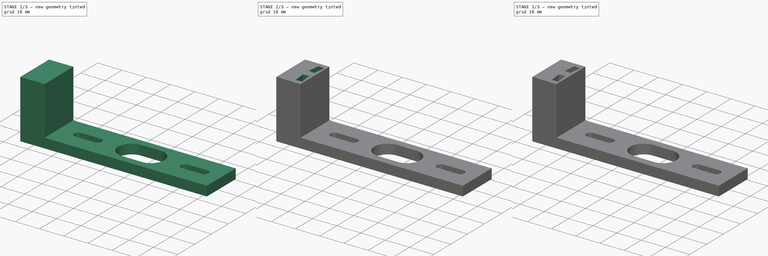
[diagram: build sequence overview — one tinted view per stage of 3, left to right]
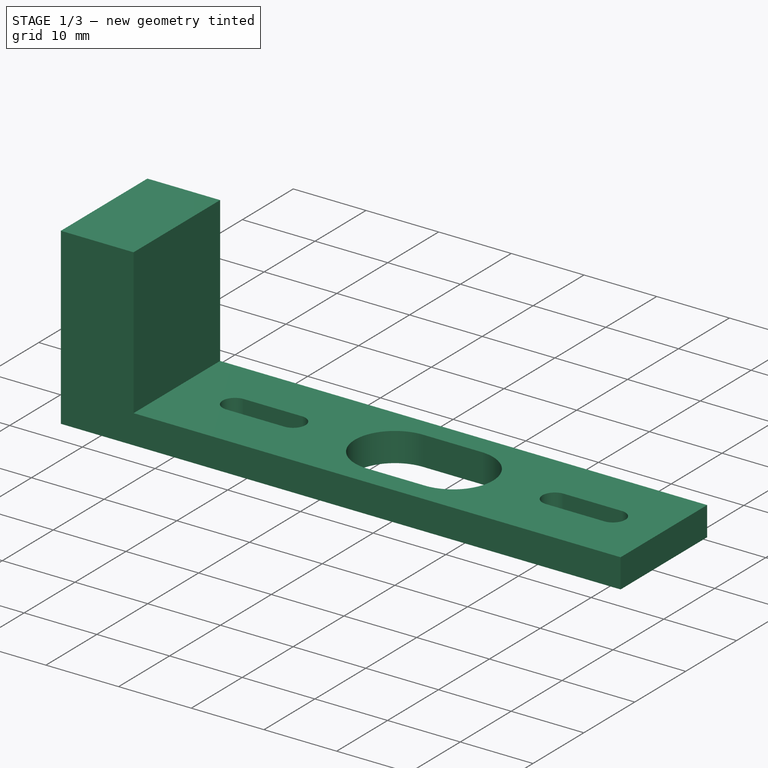
[diagram: stage 1 of 3 — iso view after this stage's code; geometry added in this stage tinted green]
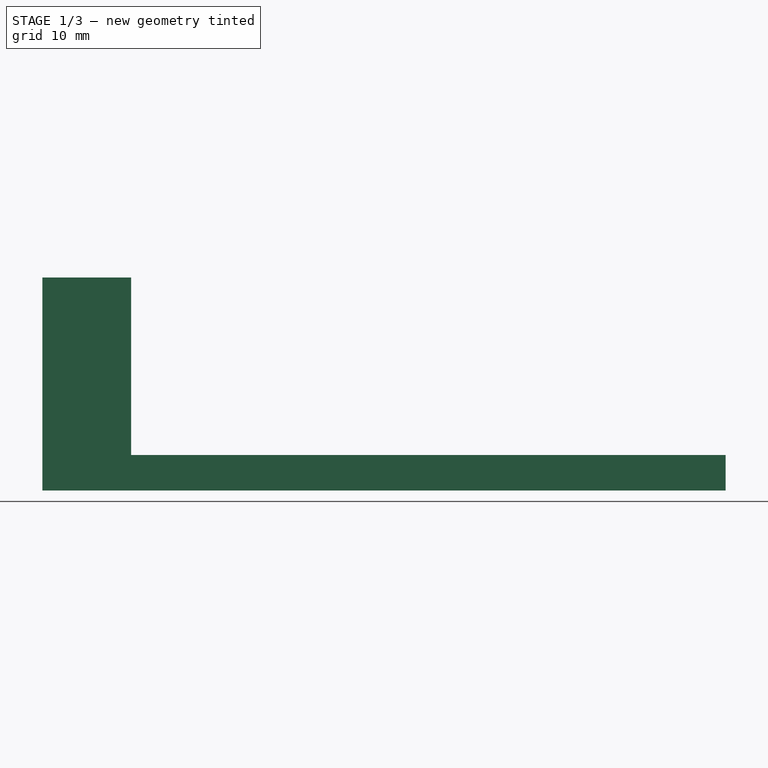
[diagram: stage 1 of 3 — front view after this stage's code; geometry added in this stage tinted green]
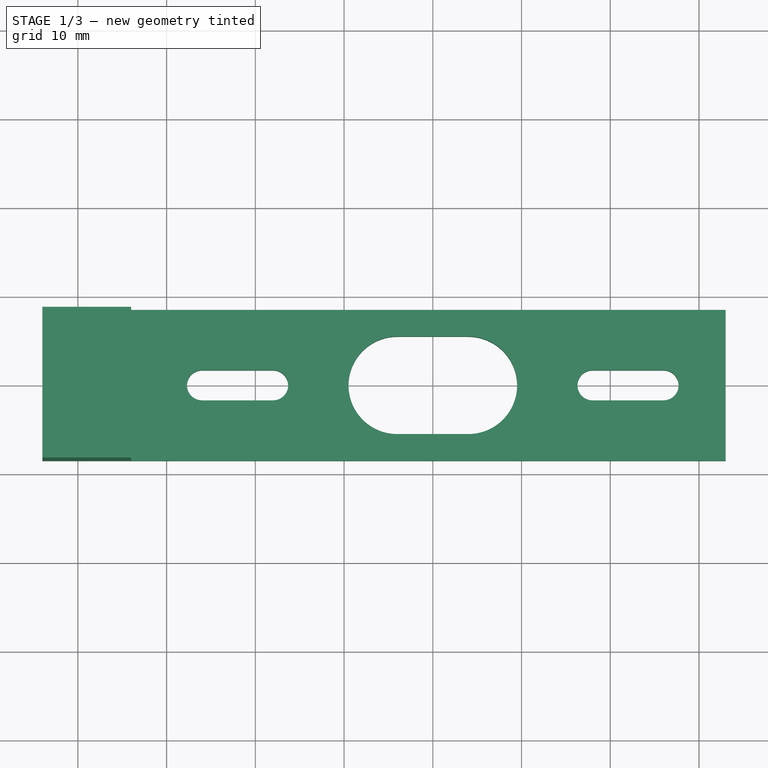
[diagram: stage 1 of 3 — top view after this stage's code; geometry added in this stage tinted green]
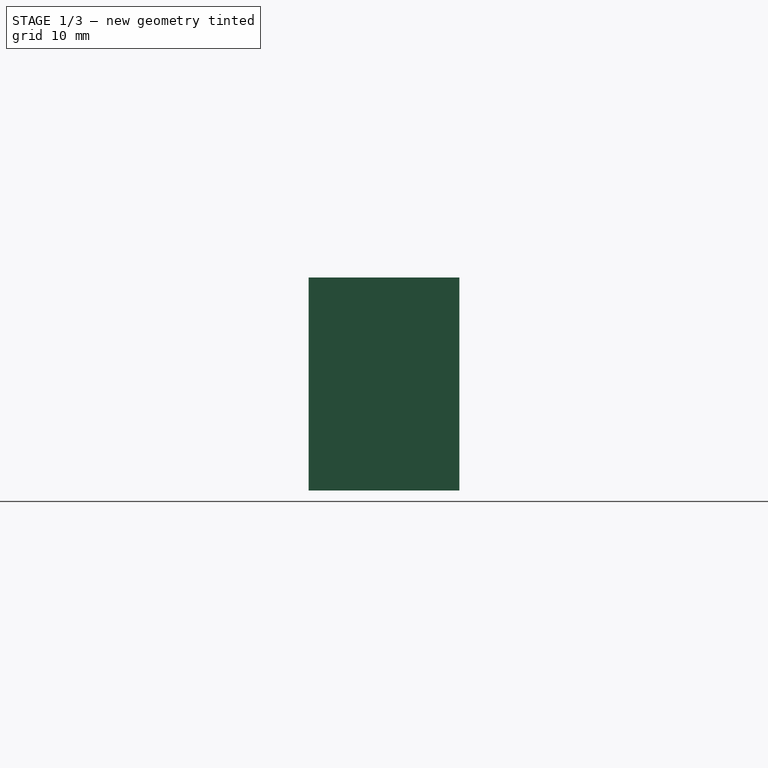
[diagram: stage 1 of 3 — right view after this stage's code; geometry added in this stage tinted green]
FCSTD DOCUMENT  (FreeCAD 0.16R6705 (Git))
Label: MotorSensorTest
License: All rights reserved
LicenseURL: http://en.wikipedia.org/wiki/All_rights_reserved
objects: Sketcher::SketchObject×3, PartDesign::Pocket×2, PartDesign::Chamfer×2, PartDesign::Pad×1
note: 11 computed .brp shape members not serialized (recipe doc carries the construction recipe); baked Part::Feature solids carry a one-line shape summary decoded from their .brp

FEATURE [Sketcher::SketchObject] Sketch
  Placement = pos=(0,0,0) rot=(1,0,0;1.5708rad)
  sketch-geometry (6):
    g0: LineSegment StartX=-44 StartY=-4 StartZ=0 EndX=-44 EndY=20 EndZ=0
    g1: LineSegment StartX=-44 StartY=20 StartZ=0 EndX=-34 EndY=20 EndZ=0
    g2: LineSegment StartX=-34 StartY=20 StartZ=0 EndX=-34 EndY=0 EndZ=0
    g3: LineSegment StartX=-34 StartY=0 StartZ=0 EndX=33 EndY=0 EndZ=0
    g4: LineSegment StartX=33 StartY=0 StartZ=0 EndX=33 EndY=-4 EndZ=0
    g5: LineSegment StartX=33 StartY=-4 StartZ=0 EndX=-44 EndY=-4 EndZ=0
  constraints (18):
    c: Vertical(g0)
    c: Coincident(g0,g1)
    c: Horizontal(g1)
    c: Coincident(g1,g2)
    c: Vertical(g2)
    c: Coincident(g2,g3)
    c: Horizontal(g3)
    c: Coincident(g3,g4)
    c: Vertical(g4)
    c: Coincident(g4,g5)
    c: Horizontal(g5)
    c: Coincident(g0,g5)
    c: DistanceX(g2,g-1) = 34
    c: PointOnObject(g3,g-1)
    c: DistanceX(g-1,g3) = 33
    c: DistanceY(g4,g3) = 4
    c: DistanceX(g0,g2) = 10
    c: DistanceY(g2,g1) = 20
FEATURE [PartDesign::Pad] Pad
  Length = 17
  Length2 = 100
  Midplane = true
  Placement = pos=(0,0,0) rot=(1,0,0;1.5708rad)
  Sketch = -> Sketch
  Type = 0
FEATURE [Sketcher::SketchObject] Sketch001
  Placement = pos=(0,0,-4) rot=(1,0,0;3.14159rad)
  Support = -> Pad [Face6]
  sketch-geometry (15):
    g0: Circle [constr] CenterX=-22 CenterY=0 CenterZ=0 NormalX=0 NormalY=0 NormalZ=1 Radius=1.7
    g1: Circle [constr] CenterX=22 CenterY=0 CenterZ=0 NormalX=0 NormalY=0 NormalZ=1 Radius=1.7
    g2: Circle [constr] CenterX=0 CenterY=0 CenterZ=0 NormalX=0 NormalY=0 NormalZ=1 Radius=5.5
    g3: ArcOfCircle CenterX=-26 CenterY=0 CenterZ=0 NormalX=0 NormalY=0 NormalZ=1 Radius=1.7 StartAngle=1.5708 EndAngle=4.71239
    g4: ArcOfCircle CenterX=-18 CenterY=0 CenterZ=0 NormalX=0 NormalY=0 NormalZ=1 Radius=1.7 StartAngle=4.71239 EndAngle=7.85398
    g5: LineSegment StartX=-26 StartY=-1.7 StartZ=0 EndX=-18 EndY=-1.7 EndZ=0
    g6: LineSegment StartX=-26 StartY=1.7 StartZ=0 EndX=-18 EndY=1.7 EndZ=0
    g7: ArcOfCircle CenterX=-4 CenterY=0 CenterZ=0 NormalX=0 NormalY=0 NormalZ=1 Radius=5.5 StartAngle=1.5708 EndAngle=4.71239
    g8: ArcOfCircle CenterX=4 CenterY=0 CenterZ=0 NormalX=0 NormalY=0 NormalZ=1 Radius=5.5 StartAngle=4.71239 EndAngle=7.85398
    g9: LineSegment StartX=-4 StartY=-5.5 StartZ=0 EndX=4 EndY=-5.5 EndZ=0
    g10: LineSegment StartX=-4 StartY=5.5 StartZ=0 EndX=4 EndY=5.5 EndZ=0
    g11: ArcOfCircle CenterX=18 CenterY=0 CenterZ=0 NormalX=0 NormalY=0 NormalZ=1 Radius=1.7 StartAngle=1.5708 EndAngle=4.71239
    g12: ArcOfCircle CenterX=26 CenterY=0 CenterZ=0 NormalX=0 NormalY=0 NormalZ=1 Radius=1.7 StartAngle=4.71239 EndAngle=7.85398
    g13: LineSegment StartX=18 StartY=-1.7 StartZ=0 EndX=26 EndY=-1.7 EndZ=0
    g14: LineSegment StartX=18 StartY=1.7 StartZ=0 EndX=26 EndY=1.7 EndZ=0
  constraints (38):
    c: PointOnObject(g0,g-1)
    c: PointOnObject(g1,g-1)
    c: Symmetric(g1,g0,g-1)
    c: Radius(g0) = 1.7
    c: Equal(g0,g1)
    c: DistanceX(g-1,g1) = 22
    c: Coincident(g2,g-1)
    c: Radius(g2) = 5.5
    c: Tangent(g3,g6) = 1.5708
    c: Tangent(g3,g5) = -1.5708
    c: Tangent(g5,g4) = -1.5708
    c: Tangent(g6,g4) = 1.5708
    c: Horizontal(g5)
    c: Equal(g3,g4)
    c: Tangent(g7,g10) = 1.5708
    c: Tangent(g7,g9) = -1.5708
    c: Tangent(g9,g8) = -1.5708
    c: Tangent(g10,g8) = 1.5708
    c: Horizontal(g9)
    c: Equal(g7,g8)
    c: PointOnObject(g7,g-1)
    c: Tangent(g11,g14) = 1.5708
    c: Tangent(g11,g13) = -1.5708
    c: Tangent(g13,g12) = -1.5708
    c: Tangent(g14,g12) = 1.5708
    c: Horizontal(g13)
    c: Equal(g11,g12)
    c: PointOnObject(g3,g-1)
    c: PointOnObject(g11,g-1)
    c: DistanceX(g11,g12) = 8
    c: DistanceX(g7,g8) = 8
    c: DistanceX(g3,g4) = 8
    c: Radius(g8) = 5.5
    c: Symmetric(g8,g7,g-2)
    c: DistanceX(g0,g4) = 4
    c: DistanceX(g11,g1) = 4
    c: Radius(g12) = 1.7
    c: Radius(g4) = 1.7
FEATURE [PartDesign::Pocket] Pocket
  Length = 5
  Placement = pos=(0,0,0) rot=(1,0,0;1.5708rad)
  Sketch = -> Sketch001
  Type = 1
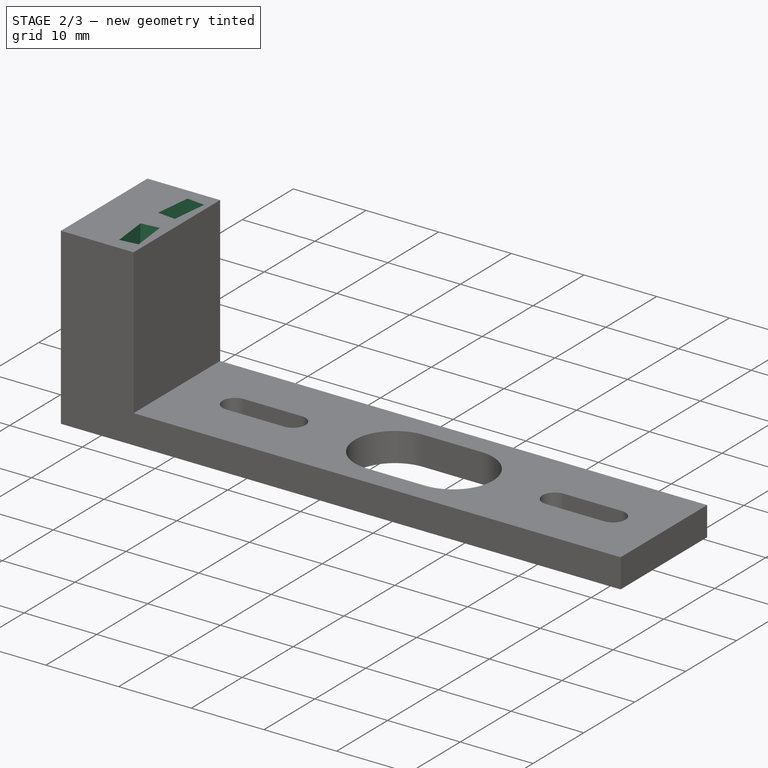
[diagram: stage 2 of 3 — iso view after this stage's code; geometry added in this stage tinted green]
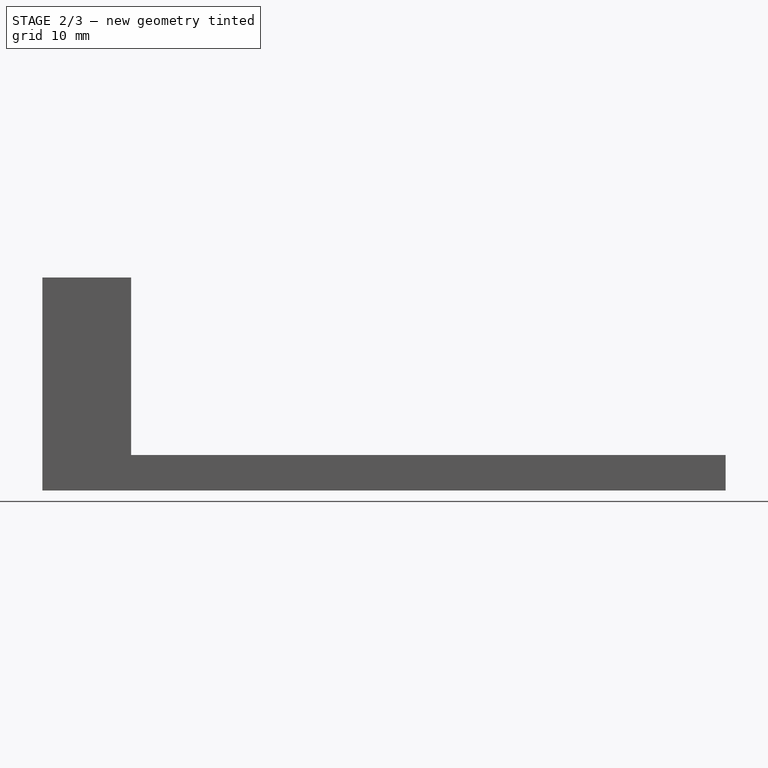
[diagram: stage 2 of 3 — front view after this stage's code; geometry added in this stage tinted green]
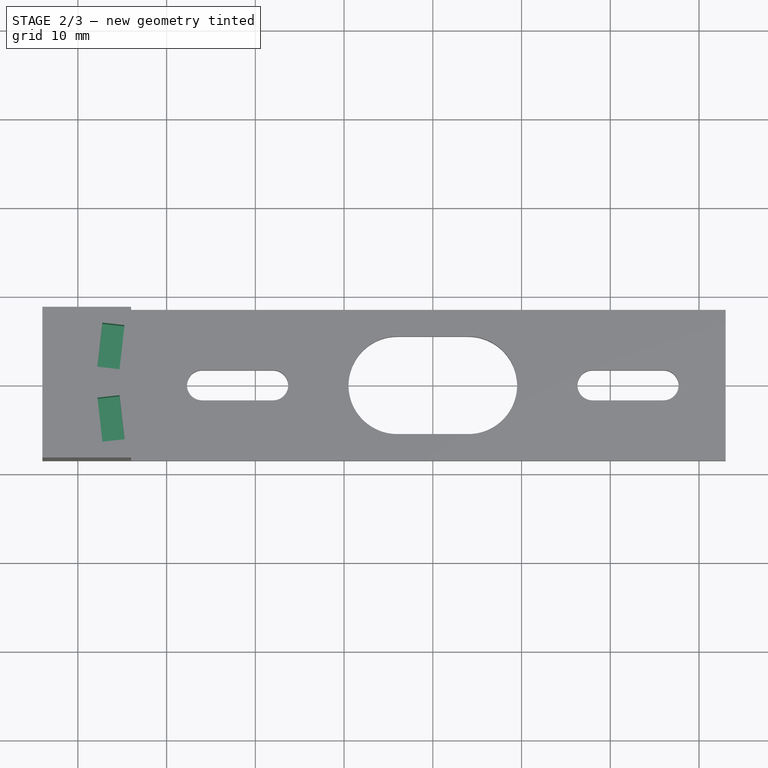
[diagram: stage 2 of 3 — top view after this stage's code; geometry added in this stage tinted green]
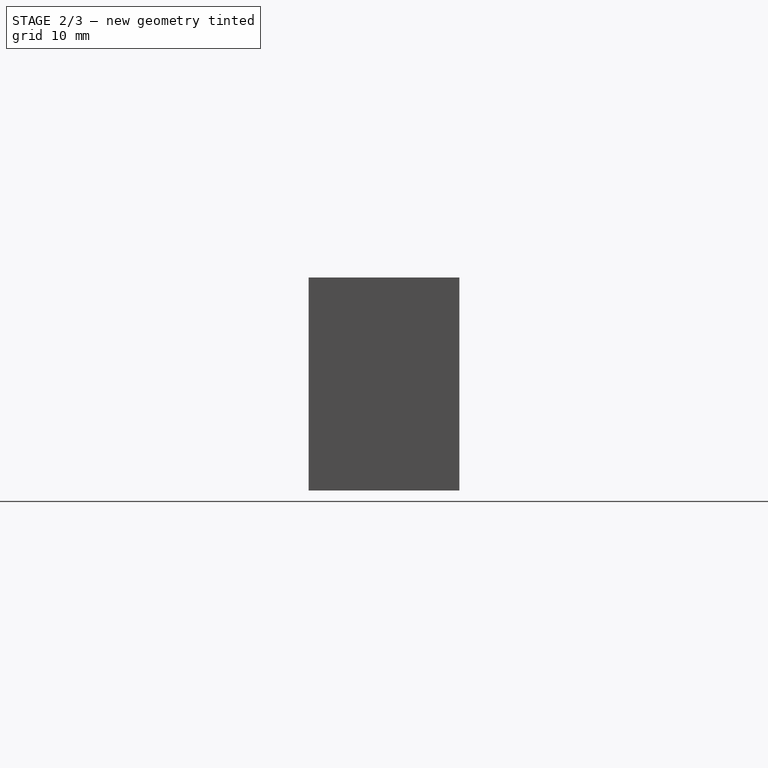
[diagram: stage 2 of 3 — right view after this stage's code; geometry added in this stage tinted green]
FEATURE [Sketcher::SketchObject] Sketch006  label="SensorSlotSpacing."
  Placement = pos=(0,0,20) rot=(0,0,1;3.14159rad)
  Support = -> Pocket [Face3]
  sketch-geometry (14):
    g0: Circle [constr] CenterX=0 CenterY=0 CenterZ=0 NormalX=0 NormalY=0 NormalZ=1 Radius=36.5
    g1: LineSegment [constr] StartX=0 StartY=0 StartZ=0 EndX=36.2704 EndY=4.08761 EndZ=0
    g2: LineSegment [constr] StartX=0 StartY=0 StartZ=0 EndX=36.2704 EndY=-4.08761 EndZ=0
    g3: Circle [constr] CenterX=68.2704 CenterY=0 CenterZ=0 NormalX=0 NormalY=0 NormalZ=1 Radius=32.26
    g4: Circle [constr] CenterX=0 CenterY=0 CenterZ=0 NormalX=0 NormalY=0 NormalZ=1 Radius=31.5
    g5: LineSegment StartX=34.7483 StartY=6.43189 StartZ=0 EndX=37.2326 EndY=6.71187 EndZ=0
    g6: LineSegment StartX=37.2326 StartY=6.71187 StartZ=0 EndX=37.7925 EndY=1.74332 EndZ=0
    g7: LineSegment StartX=37.7925 StartY=1.74332 StartZ=0 EndX=35.3082 EndY=1.46335 EndZ=0
    g8: LineSegment StartX=35.3082 StartY=1.46335 StartZ=0 EndX=34.7483 EndY=6.43189 EndZ=0
    g9: LineSegment StartX=35.3082 StartY=-1.46335 StartZ=0 EndX=37.7925 EndY=-1.74332 EndZ=0
    g10: LineSegment StartX=37.7925 StartY=-1.74332 StartZ=0 EndX=37.2326 EndY=-6.71187 EndZ=0
    g11: LineSegment StartX=37.2326 StartY=-6.71187 StartZ=0 EndX=34.7483 EndY=-6.43189 EndZ=0
    g12: LineSegment StartX=34.7483 StartY=-6.43189 StartZ=0 EndX=35.3082 EndY=-1.46335 EndZ=0
    g13: LineSegment [constr] StartX=36.5504 StartY=-1.60333 StartZ=0 EndX=35.9904 EndY=-6.57188 EndZ=0
  constraints (38):
    c: Coincident(g0,g-1)
    c: Radius(g0) = 36.5
    c: Coincident(g1,g-1)
    c: Coincident(g2,g-1)
    c: PointOnObject(g1,g0)
    c: PointOnObject(g2,g0)
    c: Angle(g2,g1) = 0.224449
    c: PointOnObject(g3,g-1)
    c: PointOnObject(g1,g3)
    c: PointOnObject(g2,g3)
    c: DistanceX(g2,g3) = 32
    c: Coincident(g4,g-1)
    c: Radius(g4) = 31.5
    c: Coincident(g5,g6)
    c: Coincident(g6,g7)
    c: Coincident(g7,g8)
    c: Coincident(g8,g5)
    c: Coincident(g9,g10)
    c: Coincident(g10,g11)
    c: Coincident(g11,g12)
    c: Coincident(g12,g9)
    c: PointOnObject(g13,g11)
    c: PointOnObject(g13,g9)
    c: Equal(g10,g12)
    c: Equal(g11,g9)
    c: Perpendicular(g9,g10)
    c: Symmetric(g11,g10,g13)
    c: Symmetric(g9,g9,g13)
    c: Symmetric(g13,g13,g2)
    c: Perpendicular(g2,g13)
    c: Distance(g9,g10) = 5
    c: Distance(g9,g9) = 2.5
    c: Symmetric(g9,g7,g-1)
    c: Symmetric(g5,g10,g-1)
    c: Equal(g7,g5)
    c: Equal(g8,g6)
    c: Perpendicular(g7,g6)
    c: Equal(g7,g11)
FEATURE [PartDesign::Pocket] Pocket001
  Length = 8.5
  Placement = pos=(0,0,0) rot=(1,0,0;1.5708rad)
  Sketch = -> Sketch006
  Type = 0
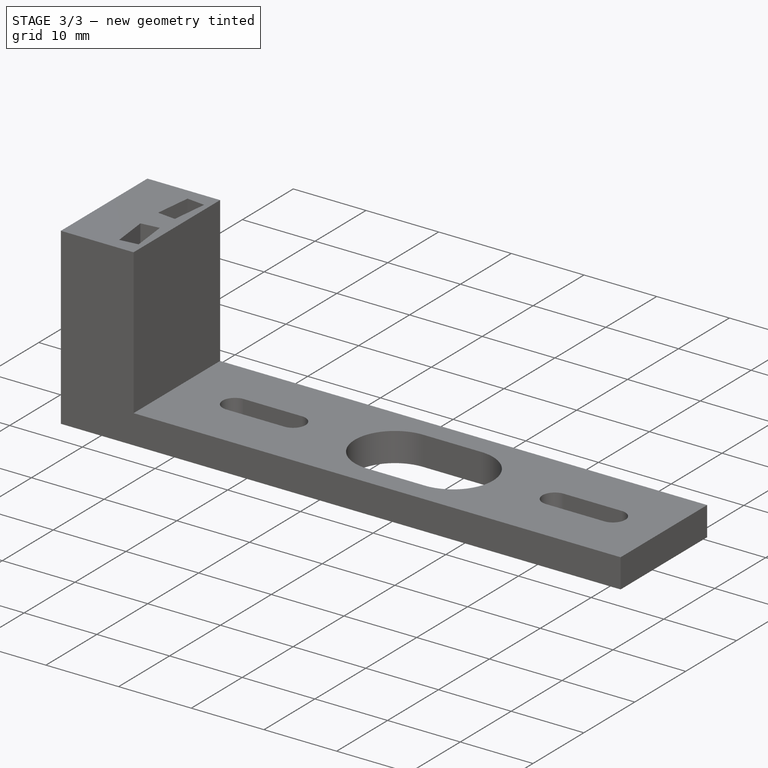
[diagram: stage 3 of 3 — iso view after this stage's code; geometry added in this stage tinted green]
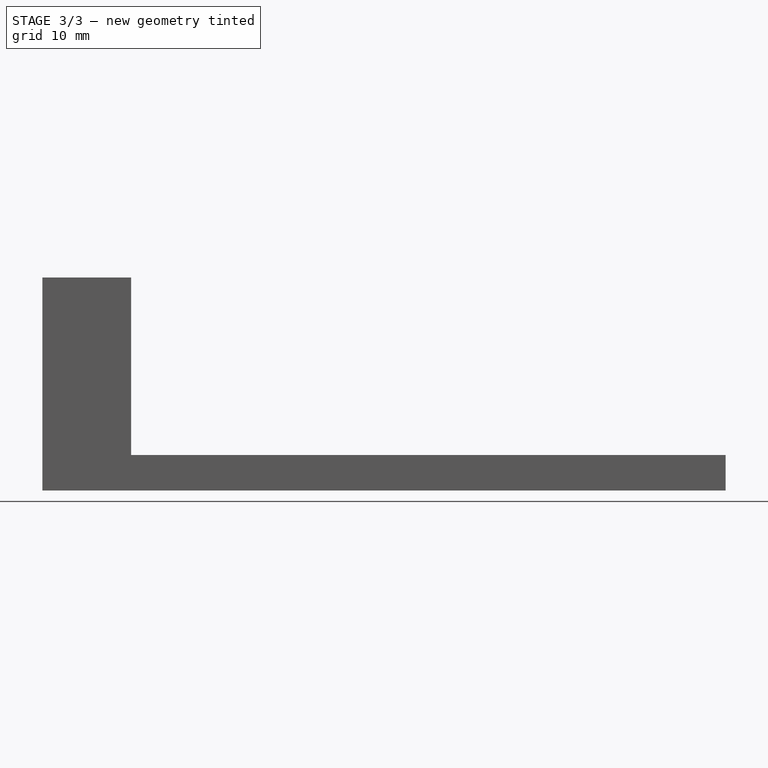
[diagram: stage 3 of 3 — front view after this stage's code; geometry added in this stage tinted green]
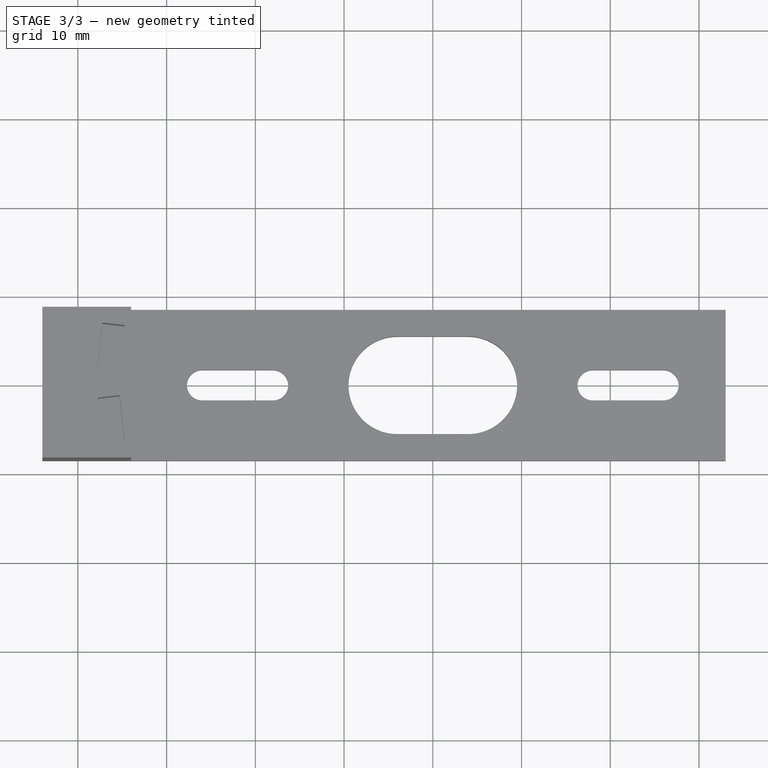
[diagram: stage 3 of 3 — top view after this stage's code; geometry added in this stage tinted green]
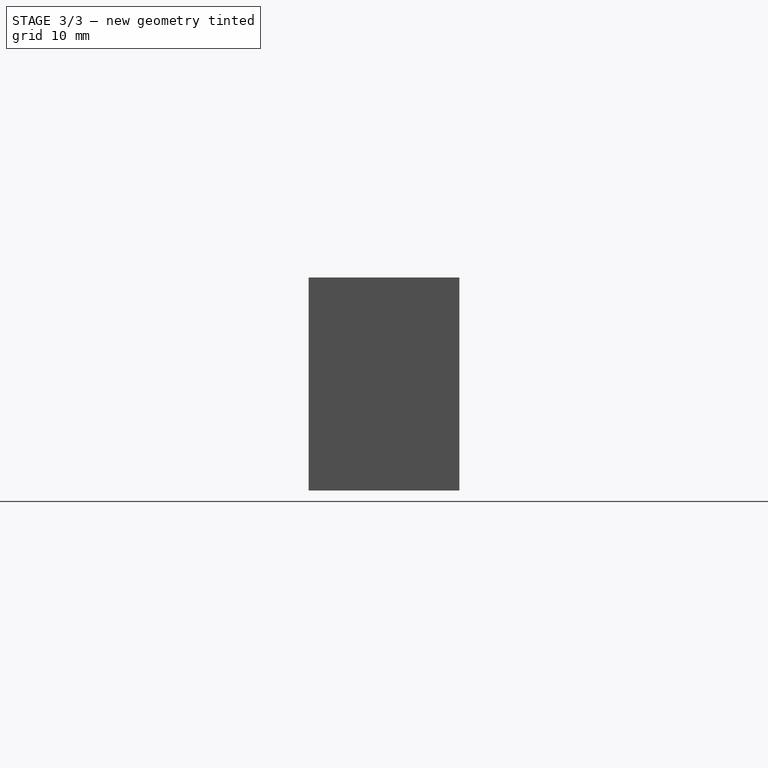
[diagram: stage 3 of 3 — right view after this stage's code; geometry added in this stage tinted green]
FEATURE [PartDesign::Chamfer] Chamfer
  Base = -> Pocket001 [Edge12]
  Placement = pos=(0,0,0) rot=(1,0,0;1.5708rad)
  Size = 1.5
FEATURE [PartDesign::Chamfer] Chamfer001
  Base = -> Chamfer [Edge14]
  Placement = pos=(0,0,0) rot=(1,0,0;1.5708rad)
  Size = 1.5
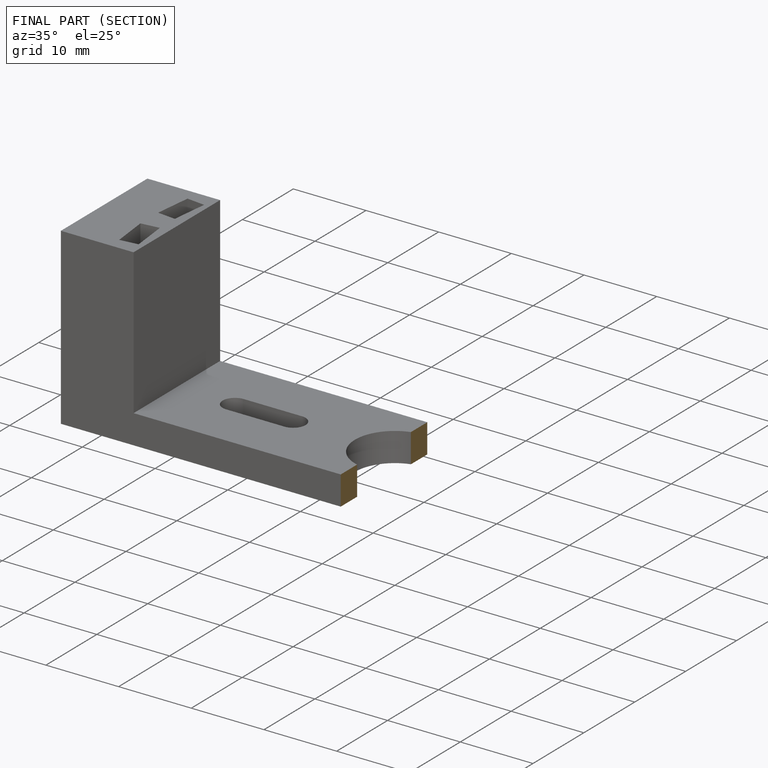
[diagram: finished part — half-section view (interior)]
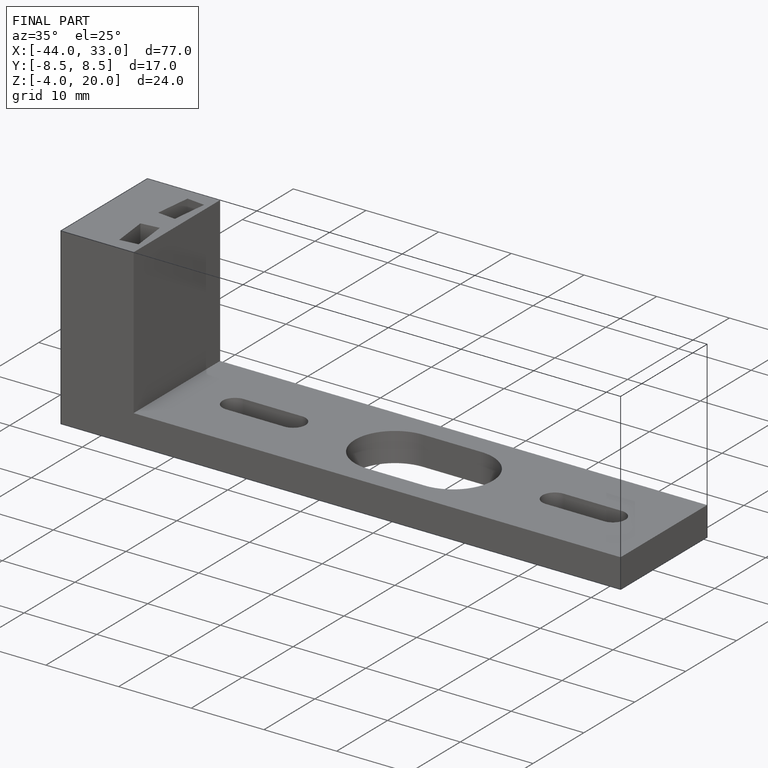
[diagram: finished part — iso view with bounding-box wireframe]
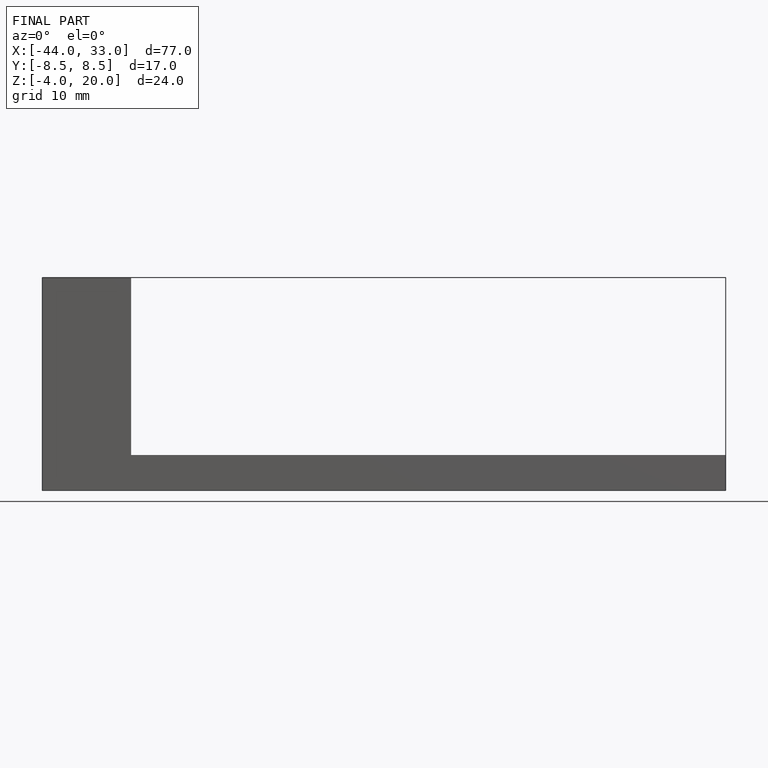
[diagram: finished part — front view with bounding-box wireframe]
